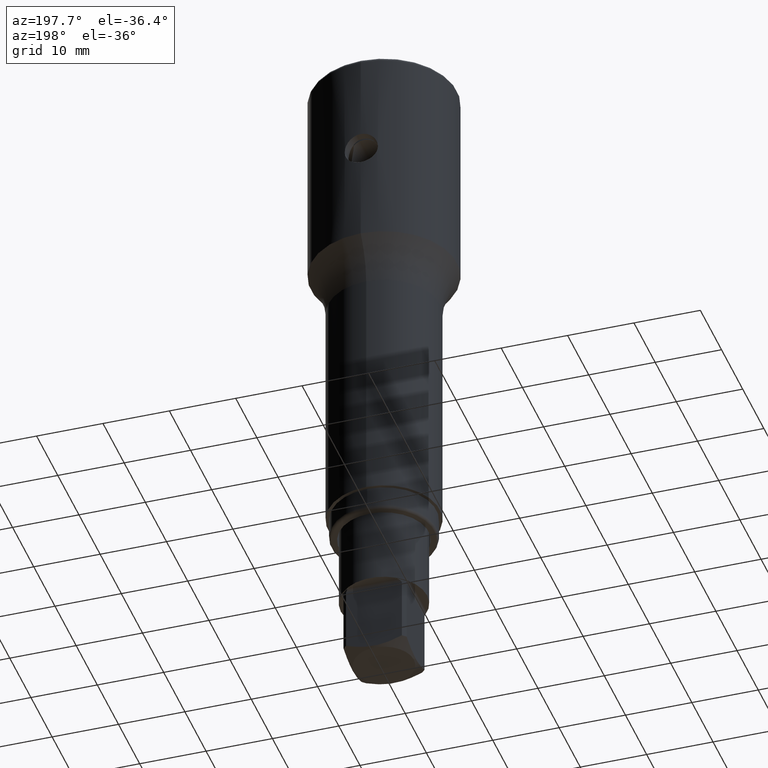
[diagram: clean part render]
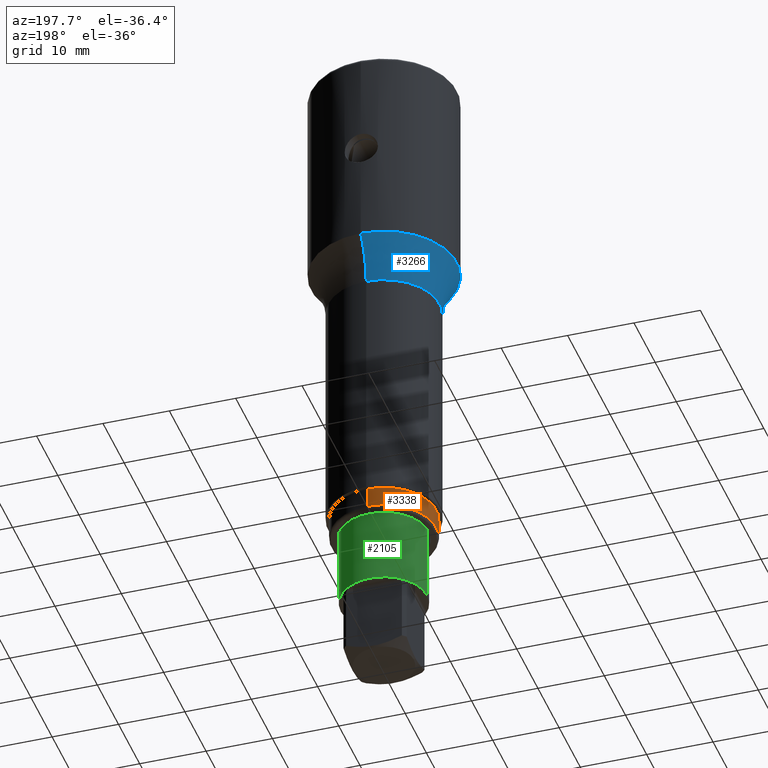
[diagram: same view with three faces highlighted in distinct colors, each labeled with its STEP entity id]
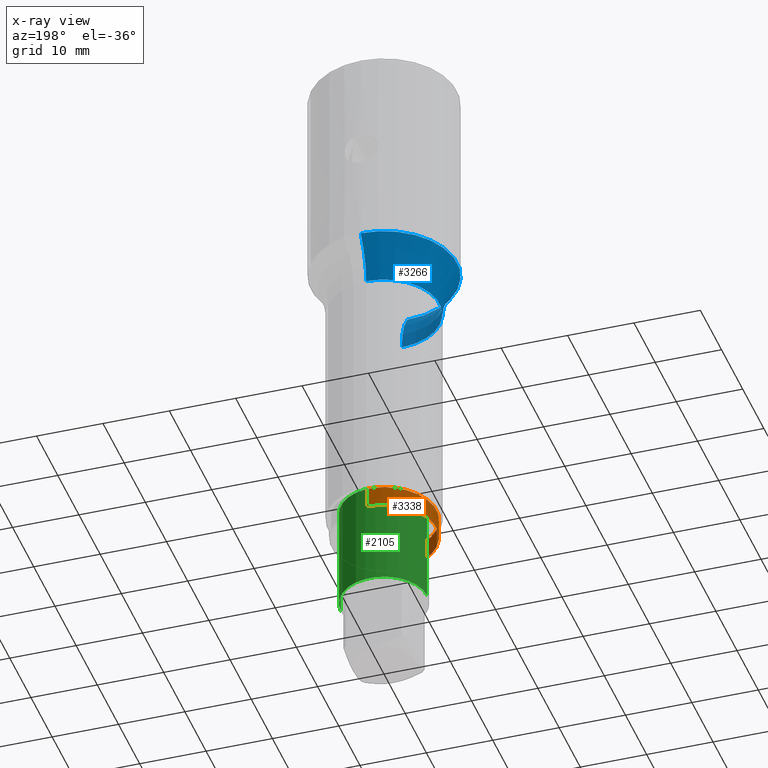
[diagram: x-ray of the same camera — body ghosted, the three highlighted faces saturated]
A machine part, auxiliary view with three faces highlighted in distinct colors.
The next image is the same camera in x-ray (body ghosted, the three faces saturated) — at least one of them is partly hidden behind the body in this view.
Their STEP definitions:

[orange] entity #3338 — the highlighted cylindrical surface (partial cylindrical patch) has radius 7.9 mm, axis along (0, 0, -1).
#2771=CARTESIAN_POINT('',(0.E0,0.E0,-7.44E1));
#2772=DIRECTION('',(0.E0,0.E0,1.E0));
#2773=DIRECTION('',(0.E0,1.E0,0.E0));
#2774=AXIS2_PLACEMENT_3D('',#2771,#2772,#2773);
#2787=CARTESIAN_POINT('',(0.E0,0.E0,-7.75E1));
#2788=DIRECTION('',(0.E0,0.E0,1.E0));
#2789=DIRECTION('',(0.E0,1.E0,0.E0));
#2790=AXIS2_PLACEMENT_3D('',#2787,#2788,#2789);
#2795=DIRECTION('',(2.912933755503E-14,0.E0,1.E0));
#2796=VECTOR('',#2795,3.1E0);
#2797=CARTESIAN_POINT('',(-8.965596577304E-14,7.9E0,-7.75E1));
#2798=LINE('',#2797,#2796);
#2802=DIRECTION('',(-2.950346298269E-14,0.E0,1.E0));
#2803=VECTOR('',#2802,3.1E0);
#2804=CARTESIAN_POINT('',(9.081575459880E-14,-7.9E0,-7.75E1));
#2805=LINE('',#2804,#2803);
#3124=CARTESIAN_POINT('',(0.E0,7.9E0,-7.44E1));
#3125=CARTESIAN_POINT('',(0.E0,-7.9E0,-7.44E1));
#3126=VERTEX_POINT('',#3124);
#3127=VERTEX_POINT('',#3125);
#3128=CARTESIAN_POINT('',(0.E0,-7.9E0,-7.75E1));
#3129=CARTESIAN_POINT('',(0.E0,7.9E0,-7.75E1));
#3130=VERTEX_POINT('',#3128);
#3131=VERTEX_POINT('',#3129);
#3324=CARTESIAN_POINT('',(0.E0,0.E0,3.9E0));
#3325=DIRECTION('',(0.E0,0.E0,-1.E0));
#3326=DIRECTION('',(0.E0,-1.E0,0.E0));
#3327=AXIS2_PLACEMENT_3D('',#3324,#3325,#3326);
#3328=CYLINDRICAL_SURFACE('',#3327,7.9E0);
#3330=ORIENTED_EDGE('',*,*,#3329,.F.);
#3332=ORIENTED_EDGE('',*,*,#3331,.T.);
#3333=ORIENTED_EDGE('',*,*,#3317,.T.);
#3335=ORIENTED_EDGE('',*,*,#3334,.F.);
#3336=EDGE_LOOP('',(#3330,#3332,#3333,#3335));
#3337=FACE_OUTER_BOUND('',#3336,.F.);
#3338=ADVANCED_FACE('',(#3337),#3328,.T.);
#2775=CIRCLE('',#2774,7.9E0);
#2791=CIRCLE('',#2790,7.9E0);
#3317=EDGE_CURVE('',#3126,#3127,#2775,.T.);
#3329=EDGE_CURVE('',#3131,#3130,#2791,.T.);
#3331=EDGE_CURVE('',#3131,#3126,#2798,.T.);
#3334=EDGE_CURVE('',#3130,#3127,#2805,.T.);

[blue] entity #3266 — the highlighted toroidal blend (fillet) surface has major radius 18.4 mm and minor (blend) radius 10 mm.
#2667=CARTESIAN_POINT('',(0.E0,0.E0,-3.1E1));
#2668=DIRECTION('',(0.E0,0.E0,1.E0));
#2669=DIRECTION('',(0.E0,1.E0,0.E0));
#2670=AXIS2_PLACEMENT_3D('',#2667,#2668,#2669);
#2709=CARTESIAN_POINT('',(0.E0,1.84E1,-3.772606868832E1));
#2710=DIRECTION('',(-1.E0,0.E0,0.E0));
#2711=DIRECTION('',(0.E0,-1.E0,0.E0));
#2712=AXIS2_PLACEMENT_3D('',#2709,#2710,#2711);
#2717=CARTESIAN_POINT('',(0.E0,-1.84E1,-3.772606868832E1));
#2718=DIRECTION('',(1.E0,0.E0,0.E0));
#2719=DIRECTION('',(0.E0,1.E0,0.E0));
#2720=AXIS2_PLACEMENT_3D('',#2717,#2718,#2719);
#2725=CARTESIAN_POINT('',(0.E0,0.E0,-3.772606868832E1));
#2726=DIRECTION('',(0.E0,0.E0,1.E0));
#2727=DIRECTION('',(0.E0,1.E0,0.E0));
#2728=AXIS2_PLACEMENT_3D('',#2725,#2726,#2727);
#3080=CARTESIAN_POINT('',(0.E0,1.1E1,-3.1E1));
#3081=VERTEX_POINT('',#3080);
#3098=CARTESIAN_POINT('',(0.E0,-1.1E1,-3.1E1));
#3099=VERTEX_POINT('',#3098);
#3113=CARTESIAN_POINT('',(0.E0,8.4E0,-3.772606868832E1));
#3115=VERTEX_POINT('',#3113);
#3121=CARTESIAN_POINT('',(0.E0,-8.4E0,-3.772606868832E1));
#3123=VERTEX_POINT('',#3121);
#3252=CARTESIAN_POINT('',(0.E0,0.E0,-3.772606868832E1));
#3253=DIRECTION('',(0.E0,0.E0,-1.E0));
#3254=DIRECTION('',(0.E0,-1.E0,0.E0));
#3255=AXIS2_PLACEMENT_3D('',#3252,#3253,#3254);
#3256=TOROIDAL_SURFACE('',#3255,1.84E1,1.E1);
#3258=ORIENTED_EDGE('',*,*,#3257,.T.);
#3259=ORIENTED_EDGE('',*,*,#3243,.T.);
#3261=ORIENTED_EDGE('',*,*,#3260,.F.);
#3263=ORIENTED_EDGE('',*,*,#3262,.F.);
#3264=EDGE_LOOP('',(#3258,#3259,#3261,#3263));
#3265=FACE_OUTER_BOUND('',#3264,.F.);
#3266=ADVANCED_FACE('',(#3265),#3256,.F.);
#2671=CIRCLE('',#2670,1.1E1);
#2713=CIRCLE('',#2712,1.E1);
#2721=CIRCLE('',#2720,1.E1);
#2729=CIRCLE('',#2728,8.4E0);
#3243=EDGE_CURVE('',#3081,#3099,#2671,.T.);
#3257=EDGE_CURVE('',#3115,#3081,#2713,.T.);
#3260=EDGE_CURVE('',#3123,#3099,#2721,.T.);
#3262=EDGE_CURVE('',#3115,#3123,#2729,.T.);

[green] entity #2105 — the highlighted cylindrical surface (partial cylindrical patch) has radius 6.5 mm, axis along (0, 0, 1).
#846=CARTESIAN_POINT('',(0.E0,0.E0,8.9E1));
#847=DIRECTION('',(0.E0,0.E0,-1.E0));
#848=DIRECTION('',(0.E0,1.E0,0.E0));
#849=AXIS2_PLACEMENT_3D('',#846,#847,#848);
#854=CARTESIAN_POINT('',(0.E0,0.E0,7.3E1));
#855=DIRECTION('',(0.E0,0.E0,-1.E0));
#856=DIRECTION('',(0.E0,1.E0,0.E0));
#857=AXIS2_PLACEMENT_3D('',#854,#855,#856);
#898=DIRECTION('',(0.E0,0.E0,1.E0));
#899=VECTOR('',#898,1.6E1);
#900=CARTESIAN_POINT('',(0.E0,-6.5E0,7.3E1));
#901=LINE('',#900,#899);
#913=DIRECTION('',(0.E0,0.E0,1.E0));
#914=VECTOR('',#913,1.6E1);
#915=CARTESIAN_POINT('',(0.E0,6.5E0,7.3E1));
#916=LINE('',#915,#914);
#1429=CARTESIAN_POINT('',(0.E0,6.5E0,8.9E1));
#1430=CARTESIAN_POINT('',(0.E0,-6.5E0,8.9E1));
#1431=VERTEX_POINT('',#1429);
#1432=VERTEX_POINT('',#1430);
#1433=CARTESIAN_POINT('',(0.E0,6.5E0,7.3E1));
#1434=VERTEX_POINT('',#1433);
#1435=CARTESIAN_POINT('',(0.E0,-6.5E0,7.3E1));
#1436=VERTEX_POINT('',#1435);
#2091=CARTESIAN_POINT('',(0.E0,0.E0,1.05E2));
#2092=DIRECTION('',(0.E0,0.E0,-1.E0));
#2093=DIRECTION('',(0.E0,-1.E0,0.E0));
#2094=AXIS2_PLACEMENT_3D('',#2091,#2092,#2093);
#2095=CYLINDRICAL_SURFACE('',#2094,6.5E0);
#2097=ORIENTED_EDGE('',*,*,#2096,.F.);
#2099=ORIENTED_EDGE('',*,*,#2098,.F.);
#2100=ORIENTED_EDGE('',*,*,#2079,.T.);
#2102=ORIENTED_EDGE('',*,*,#2101,.T.);
#2103=EDGE_LOOP('',(#2097,#2099,#2100,#2102));
#2104=FACE_OUTER_BOUND('',#2103,.F.);
#2105=ADVANCED_FACE('',(#2104),#2095,.T.);
#850=CIRCLE('',#849,6.5E0);
#858=CIRCLE('',#857,6.5E0);
#2079=EDGE_CURVE('',#1434,#1436,#858,.T.);
#2096=EDGE_CURVE('',#1431,#1432,#850,.T.);
#2098=EDGE_CURVE('',#1434,#1431,#916,.T.);
#2101=EDGE_CURVE('',#1436,#1432,#901,.T.);